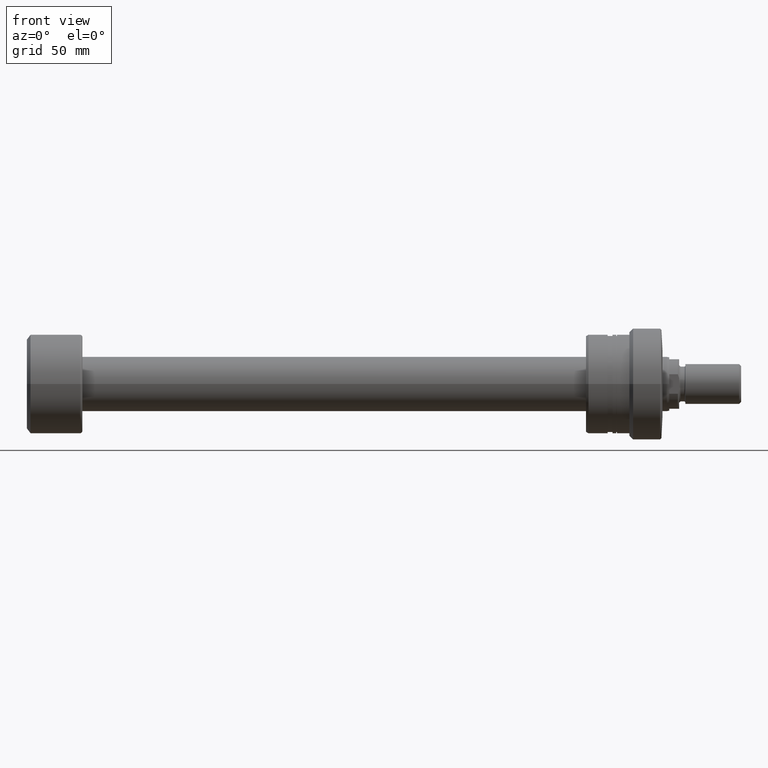
[diagram: clean part render]
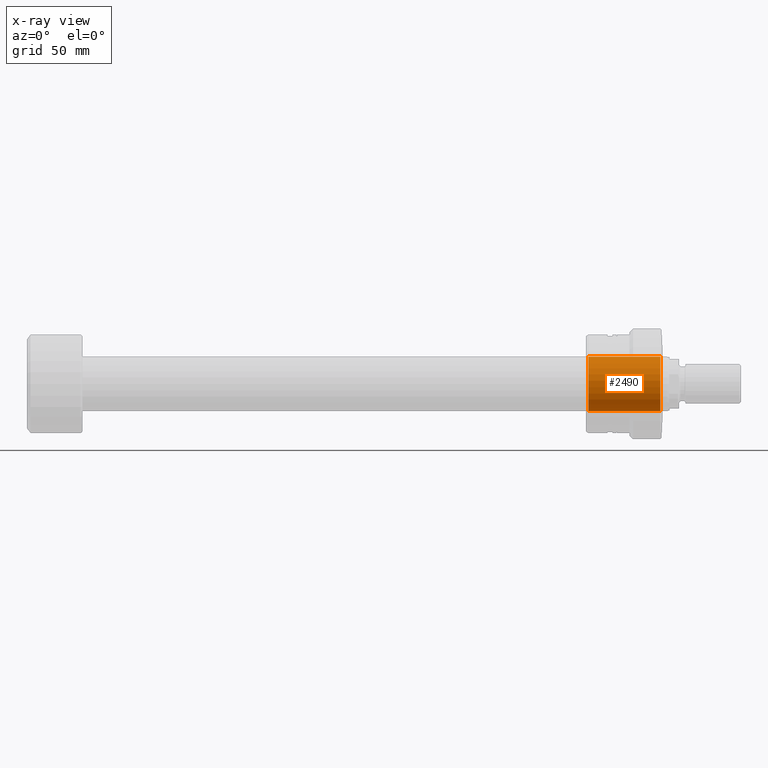
[diagram: x-ray — body ghosted, one internal face saturated and labeled with its STEP entity id]
A machine part, front view, then the same camera in x-ray: the body is ghosted and one INTERNAL B-rep face — a face not visible from any outside direction — is saturated and labeled: STEP entity #2490.
In plain terms, the highlighted cylindrical surface (edge-blend (fillet) strip) has radius 11 mm, axis along (1, 0, 0).
Its self-contained STEP definition (entity closure, byte-faithful):
#68 = VECTOR ( 'NONE', #2162, 1000.000000000000000 ) ;
#129 = CIRCLE ( 'NONE', #2741, 11.00000000000000000 ) ;
#135 = EDGE_LOOP ( 'NONE', ( #383, #2701, #1937, #2494 ) ) ;
#252 = EDGE_CURVE ( 'NONE', #2853, #1348, #617, .T. ) ;
#293 = DIRECTION ( 'NONE',  ( 1.000000000000000000, -0.000000000000000000, -0.000000000000000000 ) ) ;
#326 = LINE ( 'NONE', #1421, #2557 ) ;
#354 = CARTESIAN_POINT ( 'NONE',  ( -62.61269837220812207, 0.000000000000000000, 0.000000000000000000 ) ) ;
#383 = ORIENTED_EDGE ( 'NONE', *, *, #2612, .T. ) ;
#485 = CARTESIAN_POINT ( 'NONE',  ( -30.50000000000002132, 0.000000000000000000, -11.00000000000000000 ) ) ;
#595 = AXIS2_PLACEMENT_3D ( 'NONE', #1324, #1588, #1760 ) ;
#599 = CARTESIAN_POINT ( 'NONE',  ( -1.500000000000000000, 0.000000000000000000, -11.00000000000000000 ) ) ;
#617 = LINE ( 'NONE', #1271, #68 ) ;
#1049 = FACE_OUTER_BOUND ( 'NONE', #135, .T. ) ;
#1066 = CARTESIAN_POINT ( 'NONE',  ( -30.50000000000002132, 0.000000000000000000, 0.000000000000000000 ) ) ;
#1082 = CARTESIAN_POINT ( 'NONE',  ( -1.500000000000000000, 1.347111479062088405E-15, 11.00000000000000000 ) ) ;
#1271 = CARTESIAN_POINT ( 'NONE',  ( -62.61269837220812207, 0.000000000000000000, -11.00000000000000000 ) ) ;
#1274 = CARTESIAN_POINT ( 'NONE',  ( -30.50000000000002132, 1.347111479062088405E-15, 11.00000000000000000 ) ) ;
#1324 = CARTESIAN_POINT ( 'NONE',  ( -1.500000000000000000, 0.000000000000000000, 0.000000000000000000 ) ) ;
#1348 = VERTEX_POINT ( 'NONE', #599 ) ;
#1421 = CARTESIAN_POINT ( 'NONE',  ( -62.61269837220812207, 1.347111479062088405E-15, 11.00000000000000000 ) ) ;
#1497 = CYLINDRICAL_SURFACE ( 'NONE', #2646, 11.00000000000000000 ) ;
#1588 = DIRECTION ( 'NONE',  ( 1.000000000000000000, 0.000000000000000000, 0.000000000000000000 ) ) ;
#1712 = CIRCLE ( 'NONE', #595, 11.00000000000000000 ) ;
#1760 = DIRECTION ( 'NONE',  ( 0.000000000000000000, 0.000000000000000000, -1.000000000000000000 ) ) ;
#1786 = DIRECTION ( 'NONE',  ( 0.000000000000000000, 0.000000000000000000, -1.000000000000000000 ) ) ;
#1919 = EDGE_CURVE ( 'NONE', #2474, #2674, #326, .T. ) ;
#1937 = ORIENTED_EDGE ( 'NONE', *, *, #2171, .T. ) ;
#2154 = DIRECTION ( 'NONE',  ( 0.000000000000000000, 0.000000000000000000, -1.000000000000000000 ) ) ;
#2162 = DIRECTION ( 'NONE',  ( 1.000000000000000000, -0.000000000000000000, -0.000000000000000000 ) ) ;
#2171 = EDGE_CURVE ( 'NONE', #2674, #1348, #1712, .T. ) ;
#2474 = VERTEX_POINT ( 'NONE', #1274 ) ;
#2490 = ADVANCED_FACE ( 'NONE', ( #1049 ), #1497, .F. ) ;
#2494 = ORIENTED_EDGE ( 'NONE', *, *, #252, .F. ) ;
#2557 = VECTOR ( 'NONE', #293, 1000.000000000000000 ) ;
#2571 = DIRECTION ( 'NONE',  ( 1.000000000000000000, -0.000000000000000000, -0.000000000000000000 ) ) ;
#2612 = EDGE_CURVE ( 'NONE', #2853, #2474, #129, .T. ) ;
#2646 = AXIS2_PLACEMENT_3D ( 'NONE', #354, #2571, #2154 ) ;
#2674 = VERTEX_POINT ( 'NONE', #1082 ) ;
#2692 = DIRECTION ( 'NONE',  ( -1.000000000000000000, 0.000000000000000000, 0.000000000000000000 ) ) ;
#2701 = ORIENTED_EDGE ( 'NONE', *, *, #1919, .T. ) ;
#2741 = AXIS2_PLACEMENT_3D ( 'NONE', #1066, #2692, #1786 ) ;
#2853 = VERTEX_POINT ( 'NONE', #485 ) ;